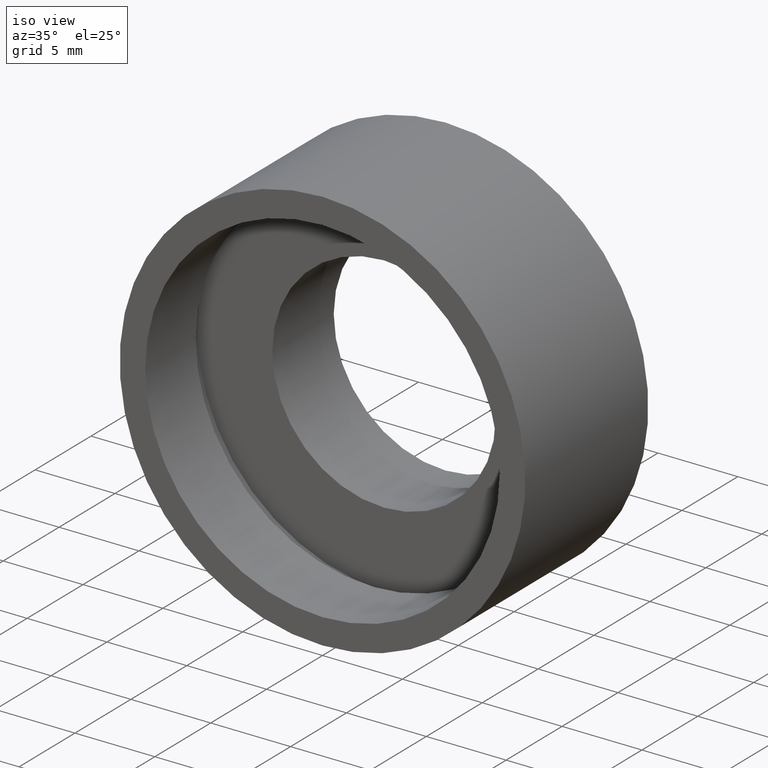
[diagram: clean part render]
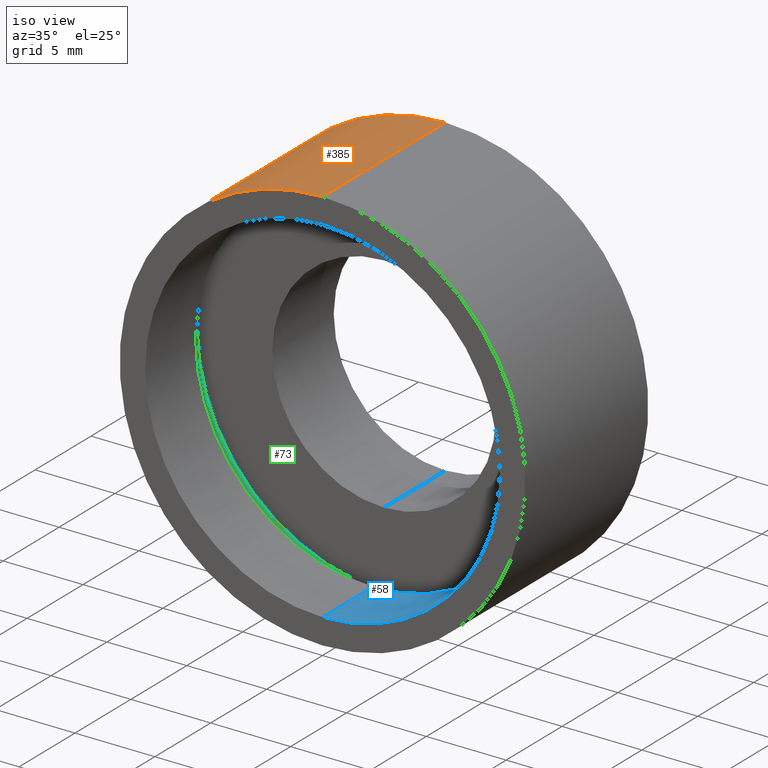
[diagram: same view with three faces highlighted in distinct colors, each labeled with its STEP entity id]
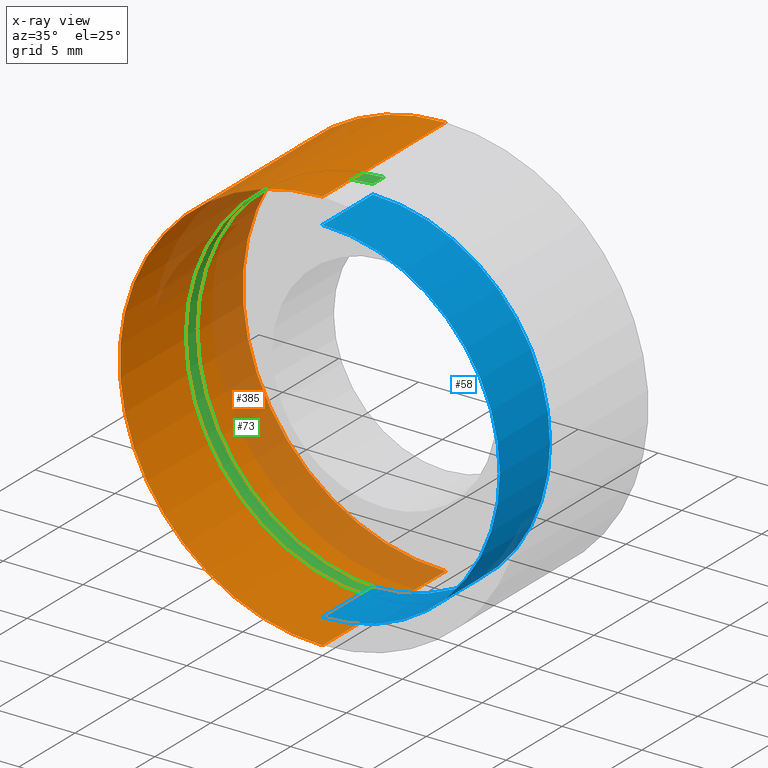
[diagram: x-ray of the same camera — body ghosted, the three highlighted faces saturated]
A machine part, iso view with three faces highlighted in distinct colors.
The next image is the same camera in x-ray (body ghosted, the three faces saturated) — at least one of them is partly hidden behind the body in this view.
Their STEP definitions:

[orange] entity #385 — the highlighted cylindrical surface (partial cylindrical patch) has radius 12.7 mm, axis along (-0, 1, -0).
#6 = CIRCLE ( 'NONE', #324, 12.70000000000000500 ) ;
#13 = VERTEX_POINT ( 'NONE', #104 ) ;
#16 = CARTESIAN_POINT ( 'NONE',  ( 0.0000000000000000000, 60.02082041425541100, 0.0000000000000000000 ) ) ;
#17 = DIRECTION ( 'NONE',  ( -0.0000000000000000000, 1.000000000000000000, -0.0000000000000000000 ) ) ;
#22 = AXIS2_PLACEMENT_3D ( 'NONE', #399, #17, #184 ) ;
#24 = ORIENTED_EDGE ( 'NONE', *, *, #341, .T. ) ;
#36 = CARTESIAN_POINT ( 'NONE',  ( 0.0000000000000000000, 60.02082041425541100, 12.70000000000000600 ) ) ;
#38 = CARTESIAN_POINT ( 'NONE',  ( 0.0000000000000000000, 10.99999999999999600, 0.0000000000000000000 ) ) ;
#61 = VERTEX_POINT ( 'NONE', #230 ) ;
#63 = LINE ( 'NONE', #386, #281 ) ;
#70 = VERTEX_POINT ( 'NONE', #101 ) ;
#94 = VECTOR ( 'NONE', #298, 1000.000000000000000 ) ;
#101 = CARTESIAN_POINT ( 'NONE',  ( 0.0000000000000000000, 10.99999999999999600, 12.70000000000000500 ) ) ;
#104 = CARTESIAN_POINT ( 'NONE',  ( 0.0000000000000000000, 0.0000000000000000000, 12.70000000000000600 ) ) ;
#107 = DIRECTION ( 'NONE',  ( -0.0000000000000000000, 1.000000000000000000, -0.0000000000000000000 ) ) ;
#114 = DIRECTION ( 'NONE',  ( 0.0000000000000000000, 0.0000000000000000000, 1.000000000000000000 ) ) ;
#126 = EDGE_LOOP ( 'NONE', ( #425, #24, #144, #268 ) ) ;
#144 = ORIENTED_EDGE ( 'NONE', *, *, #270, .T. ) ;
#154 = EDGE_CURVE ( 'NONE', #61, #70, #6, .T. ) ;
#184 = DIRECTION ( 'NONE',  ( 0.0000000000000000000, 0.0000000000000000000, 1.000000000000000000 ) ) ;
#203 = AXIS2_PLACEMENT_3D ( 'NONE', #16, #405, #114 ) ;
#230 = CARTESIAN_POINT ( 'NONE',  ( 1.555301434917139000E-015, 10.99999999999999600, -12.70000000000000500 ) ) ;
#236 = VERTEX_POINT ( 'NONE', #253 ) ;
#253 = CARTESIAN_POINT ( 'NONE',  ( 1.555301434917139200E-015, 0.0000000000000000000, -12.70000000000000600 ) ) ;
#268 = ORIENTED_EDGE ( 'NONE', *, *, #154, .F. ) ;
#270 = EDGE_CURVE ( 'NONE', #13, #70, #355, .T. ) ;
#275 = EDGE_CURVE ( 'NONE', #236, #61, #63, .T. ) ;
#281 = VECTOR ( 'NONE', #344, 1000.000000000000000 ) ;
#282 = CYLINDRICAL_SURFACE ( 'NONE', #203, 12.70000000000000600 ) ;
#292 = FACE_OUTER_BOUND ( 'NONE', #126, .T. ) ;
#295 = CIRCLE ( 'NONE', #22, 12.70000000000000600 ) ;
#298 = DIRECTION ( 'NONE',  ( -0.0000000000000000000, 1.000000000000000000, -0.0000000000000000000 ) ) ;
#324 = AXIS2_PLACEMENT_3D ( 'NONE', #38, #107, #420 ) ;
#341 = EDGE_CURVE ( 'NONE', #236, #13, #295, .T. ) ;
#344 = DIRECTION ( 'NONE',  ( -0.0000000000000000000, 1.000000000000000000, -0.0000000000000000000 ) ) ;
#355 = LINE ( 'NONE', #36, #94 ) ;
#385 = ADVANCED_FACE ( 'NONE', ( #292 ), #282, .T. ) ;
#386 = CARTESIAN_POINT ( 'NONE',  ( 1.555301434917139200E-015, 60.02082041425541100, -12.70000000000000600 ) ) ;
#399 = CARTESIAN_POINT ( 'NONE',  ( 0.0000000000000000000, 0.0000000000000000000, 0.0000000000000000000 ) ) ;
#405 = DIRECTION ( 'NONE',  ( -0.0000000000000000000, 1.000000000000000000, -0.0000000000000000000 ) ) ;
#420 = DIRECTION ( 'NONE',  ( 0.0000000000000000000, 0.0000000000000000000, 1.000000000000000000 ) ) ;
#425 = ORIENTED_EDGE ( 'NONE', *, *, #275, .F. ) ;

[blue] entity #58 — the highlighted cylindrical surface (partial cylindrical patch) has radius 11.1 mm, axis along (-0, 1, -0).
#3 = LINE ( 'NONE', #346, #414 ) ;
#20 = CARTESIAN_POINT ( 'NONE',  ( 1.359357947053563100E-015, 4.499999999999997300, -11.10000000000000700 ) ) ;
#29 = CARTESIAN_POINT ( 'NONE',  ( 0.0000000000000000000, 60.02082041425541100, 11.10000000000000700 ) ) ;
#32 = DIRECTION ( 'NONE',  ( -0.0000000000000000000, 1.000000000000000000, -0.0000000000000000000 ) ) ;
#50 = DIRECTION ( 'NONE',  ( -0.0000000000000000000, 1.000000000000000000, -0.0000000000000000000 ) ) ;
#52 = ORIENTED_EDGE ( 'NONE', *, *, #77, .F. ) ;
#58 = ADVANCED_FACE ( 'NONE', ( #332 ), #159, .F. ) ;
#62 = ORIENTED_EDGE ( 'NONE', *, *, #233, .F. ) ;
#67 = DIRECTION ( 'NONE',  ( -0.0000000000000000000, 1.000000000000000000, -0.0000000000000000000 ) ) ;
#71 = CIRCLE ( 'NONE', #97, 11.10000000000000700 ) ;
#74 = DIRECTION ( 'NONE',  ( -0.0000000000000000000, 1.000000000000000000, -0.0000000000000000000 ) ) ;
#77 = EDGE_CURVE ( 'NONE', #360, #279, #3, .T. ) ;
#79 = CARTESIAN_POINT ( 'NONE',  ( 0.0000000000000000000, 4.499999999999997300, 11.10000000000000700 ) ) ;
#95 = CARTESIAN_POINT ( 'NONE',  ( 0.0000000000000000000, 0.0000000000000000000, 11.10000000000000700 ) ) ;
#96 = VERTEX_POINT ( 'NONE', #79 ) ;
#97 = AXIS2_PLACEMENT_3D ( 'NONE', #299, #32, #235 ) ;
#106 = DIRECTION ( 'NONE',  ( -0.0000000000000000000, 1.000000000000000000, -0.0000000000000000000 ) ) ;
#159 = CYLINDRICAL_SURFACE ( 'NONE', #225, 11.10000000000000700 ) ;
#161 = CIRCLE ( 'NONE', #352, 11.10000000000000700 ) ;
#171 = VERTEX_POINT ( 'NONE', #95 ) ;
#181 = DIRECTION ( 'NONE',  ( 0.0000000000000000000, 0.0000000000000000000, 1.000000000000000000 ) ) ;
#194 = ORIENTED_EDGE ( 'NONE', *, *, #377, .T. ) ;
#195 = CARTESIAN_POINT ( 'NONE',  ( 1.359357947053563100E-015, 0.0000000000000000000, -11.10000000000000700 ) ) ;
#225 = AXIS2_PLACEMENT_3D ( 'NONE', #237, #74, #181 ) ;
#228 = CARTESIAN_POINT ( 'NONE',  ( 0.0000000000000000000, 4.499999999999997300, 0.0000000000000000000 ) ) ;
#233 = EDGE_CURVE ( 'NONE', #171, #360, #71, .T. ) ;
#235 = DIRECTION ( 'NONE',  ( 0.0000000000000000000, 0.0000000000000000000, 1.000000000000000000 ) ) ;
#237 = CARTESIAN_POINT ( 'NONE',  ( 0.0000000000000000000, 60.02082041425541100, 0.0000000000000000000 ) ) ;
#279 = VERTEX_POINT ( 'NONE', #20 ) ;
#299 = CARTESIAN_POINT ( 'NONE',  ( 0.0000000000000000000, 0.0000000000000000000, 0.0000000000000000000 ) ) ;
#309 = LINE ( 'NONE', #29, #318 ) ;
#311 = EDGE_CURVE ( 'NONE', #96, #279, #161, .T. ) ;
#318 = VECTOR ( 'NONE', #50, 1000.000000000000000 ) ;
#332 = FACE_OUTER_BOUND ( 'NONE', #380, .T. ) ;
#346 = CARTESIAN_POINT ( 'NONE',  ( 1.359357947053563100E-015, 60.02082041425541100, -11.10000000000000700 ) ) ;
#352 = AXIS2_PLACEMENT_3D ( 'NONE', #228, #106, #363 ) ;
#360 = VERTEX_POINT ( 'NONE', #195 ) ;
#363 = DIRECTION ( 'NONE',  ( 0.0000000000000000000, 0.0000000000000000000, 1.000000000000000000 ) ) ;
#377 = EDGE_CURVE ( 'NONE', #171, #96, #309, .T. ) ;
#380 = EDGE_LOOP ( 'NONE', ( #52, #62, #194, #401 ) ) ;
#401 = ORIENTED_EDGE ( 'NONE', *, *, #311, .T. ) ;
#414 = VECTOR ( 'NONE', #67, 1000.000000000000000 ) ;

[green] entity #73 — the highlighted cylindrical surface (partial cylindrical patch) has radius 11.7 mm, axis along (-0, 1, -0).
#2 = VERTEX_POINT ( 'NONE', #25 ) ;
#8 = EDGE_CURVE ( 'NONE', #358, #2, #222, .T. ) ;
#9 = DIRECTION ( 'NONE',  ( -0.0000000000000000000, 1.000000000000000000, -0.0000000000000000000 ) ) ;
#25 = CARTESIAN_POINT ( 'NONE',  ( 0.0000000000000000000, 4.499999999999997300, 11.70000000000000600 ) ) ;
#26 = DIRECTION ( 'NONE',  ( -0.0000000000000000000, 1.000000000000000000, -0.0000000000000000000 ) ) ;
#47 = CARTESIAN_POINT ( 'NONE',  ( 0.0000000000000000000, 60.02082041425541100, 11.70000000000000600 ) ) ;
#55 = CYLINDRICAL_SURFACE ( 'NONE', #330, 11.70000000000000600 ) ;
#68 = EDGE_CURVE ( 'NONE', #139, #249, #265, .T. ) ;
#73 = ADVANCED_FACE ( 'NONE', ( #189 ), #55, .F. ) ;
#123 = DIRECTION ( 'NONE',  ( -0.0000000000000000000, 1.000000000000000000, -0.0000000000000000000 ) ) ;
#125 = ORIENTED_EDGE ( 'NONE', *, *, #302, .F. ) ;
#137 = ORIENTED_EDGE ( 'NONE', *, *, #242, .T. ) ;
#139 = VERTEX_POINT ( 'NONE', #221 ) ;
#140 = CARTESIAN_POINT ( 'NONE',  ( 0.0000000000000000000, 5.499999999999998200, 0.0000000000000000000 ) ) ;
#165 = DIRECTION ( 'NONE',  ( -0.0000000000000000000, 1.000000000000000000, -0.0000000000000000000 ) ) ;
#170 = DIRECTION ( 'NONE',  ( 0.0000000000000000000, 0.0000000000000000000, 1.000000000000000000 ) ) ;
#183 = ORIENTED_EDGE ( 'NONE', *, *, #8, .F. ) ;
#189 = FACE_OUTER_BOUND ( 'NONE', #370, .T. ) ;
#196 = CARTESIAN_POINT ( 'NONE',  ( 0.0000000000000000000, 4.499999999999997300, 0.0000000000000000000 ) ) ;
#204 = DIRECTION ( 'NONE',  ( 0.0000000000000000000, 0.0000000000000000000, 1.000000000000000000 ) ) ;
#208 = DIRECTION ( 'NONE',  ( 0.0000000000000000000, 0.0000000000000000000, 1.000000000000000000 ) ) ;
#214 = AXIS2_PLACEMENT_3D ( 'NONE', #140, #267, #204 ) ;
#215 = VECTOR ( 'NONE', #9, 1000.000000000000000 ) ;
#221 = CARTESIAN_POINT ( 'NONE',  ( 1.432836755002403900E-015, 5.499999999999998200, -11.70000000000000600 ) ) ;
#222 = CIRCLE ( 'NONE', #336, 11.70000000000000600 ) ;
#242 = EDGE_CURVE ( 'NONE', #358, #139, #306, .T. ) ;
#249 = VERTEX_POINT ( 'NONE', #387 ) ;
#260 = LINE ( 'NONE', #47, #423 ) ;
#265 = CIRCLE ( 'NONE', #214, 11.70000000000000600 ) ;
#267 = DIRECTION ( 'NONE',  ( -0.0000000000000000000, 1.000000000000000000, -0.0000000000000000000 ) ) ;
#302 = EDGE_CURVE ( 'NONE', #2, #249, #260, .T. ) ;
#304 = ORIENTED_EDGE ( 'NONE', *, *, #68, .T. ) ;
#306 = LINE ( 'NONE', #410, #215 ) ;
#330 = AXIS2_PLACEMENT_3D ( 'NONE', #376, #123, #170 ) ;
#336 = AXIS2_PLACEMENT_3D ( 'NONE', #196, #26, #208 ) ;
#358 = VERTEX_POINT ( 'NONE', #403 ) ;
#370 = EDGE_LOOP ( 'NONE', ( #183, #137, #304, #125 ) ) ;
#376 = CARTESIAN_POINT ( 'NONE',  ( 0.0000000000000000000, 60.02082041425541100, 0.0000000000000000000 ) ) ;
#387 = CARTESIAN_POINT ( 'NONE',  ( 0.0000000000000000000, 5.499999999999998200, 11.70000000000000600 ) ) ;
#403 = CARTESIAN_POINT ( 'NONE',  ( 1.432836755002403900E-015, 4.499999999999997300, -11.70000000000000600 ) ) ;
#410 = CARTESIAN_POINT ( 'NONE',  ( 1.432836755002403900E-015, 60.02082041425541100, -11.70000000000000600 ) ) ;
#423 = VECTOR ( 'NONE', #165, 1000.000000000000000 ) ;